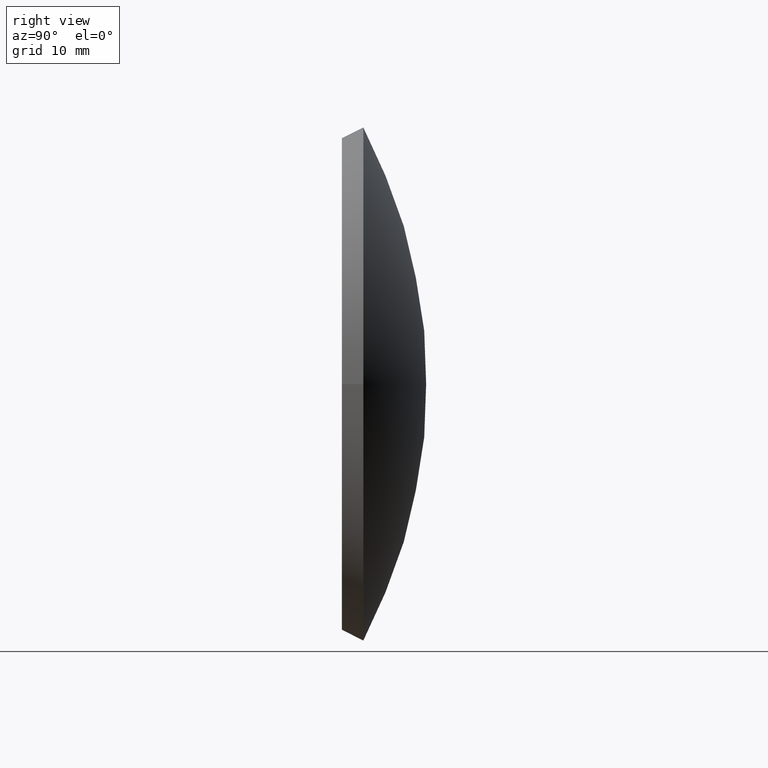
[diagram: clean part render]
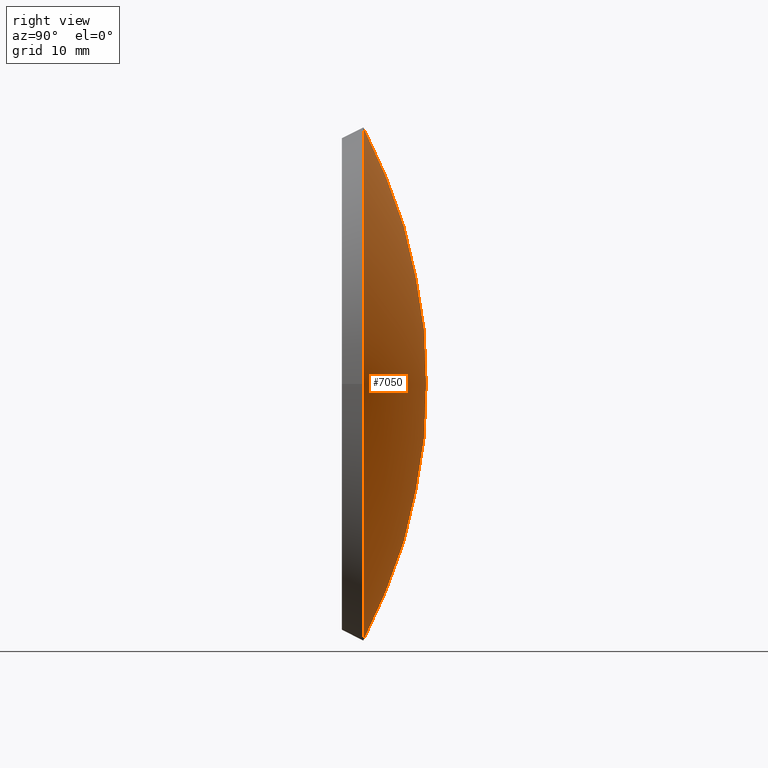
[diagram: same view with one face highlighted and labeled with its STEP entity id]
A machine part, right view. The second image highlights one B-rep face of the part: STEP entity #7050.
In plain terms, the highlighted spherical surface has radius 45.5869 mm.
Its self-contained STEP definition (entity closure, byte-faithful):
#87 = AXIS2_PLACEMENT_3D ( 'NONE', #207, #5812, #7619 ) ;
#182 = SPHERICAL_SURFACE ( 'NONE', #6937, 45.58691963461150465 ) ;
#207 = CARTESIAN_POINT ( 'NONE',  ( 6.978484678373912826E-15, 1.770573371923706452, 0.000000000000000000 ) ) ;
#963 = CARTESIAN_POINT ( 'NONE',  ( 21.19999999999999929, 1.770573371923734651, 0.000000000000000000 ) ) ;
#3685 = CARTESIAN_POINT ( 'NONE',  ( 2.766840077024004679E-22, -38.58691963461143359, 0.000000000000000000 ) ) ;
#4587 = DIRECTION ( 'NONE',  ( 1.000000000000000000, 1.369911492939530751E-15, 0.000000000000000000 ) ) ;
#4599 = ORIENTED_EDGE ( 'NONE', *, *, #8840, .F. ) ;
#5812 = DIRECTION ( 'NONE',  ( 1.334464540380600701E-15, -1.000000000000000000, -0.000000000000000000 ) ) ;
#6013 = FACE_OUTER_BOUND ( 'NONE', #9075, .T. ) ;
#6445 = DIRECTION ( 'NONE',  ( 0.000000000000000000, -0.000000000000000000, 1.000000000000000000 ) ) ;
#6937 = AXIS2_PLACEMENT_3D ( 'NONE', #3685, #6445, #4587 ) ;
#7050 = ADVANCED_FACE ( 'NONE', ( #6013 ), #182, .T. ) ;
#7619 = DIRECTION ( 'NONE',  ( 1.000000000000000000, 1.329681909652034238E-15, 0.000000000000000000 ) ) ;
#8840 = EDGE_CURVE ( 'NONE', #8996, #8996, #11098, .T. ) ;
#8996 = VERTEX_POINT ( 'NONE', #963 ) ;
#9075 = EDGE_LOOP ( 'NONE', ( #4599 ) ) ;
#11098 = CIRCLE ( 'NONE', #87, 21.19999999999999218 ) ;